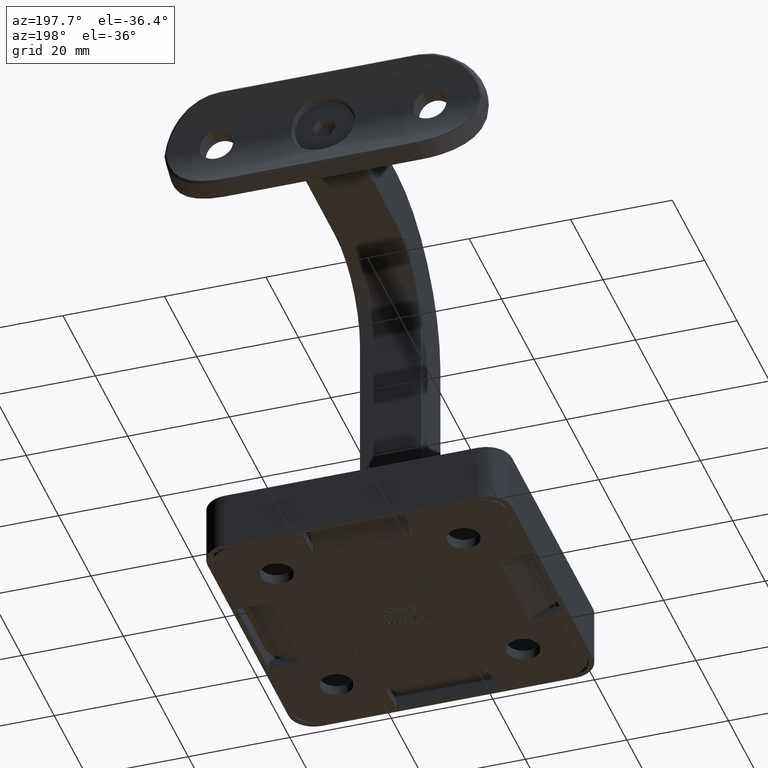
[diagram: clean part render]
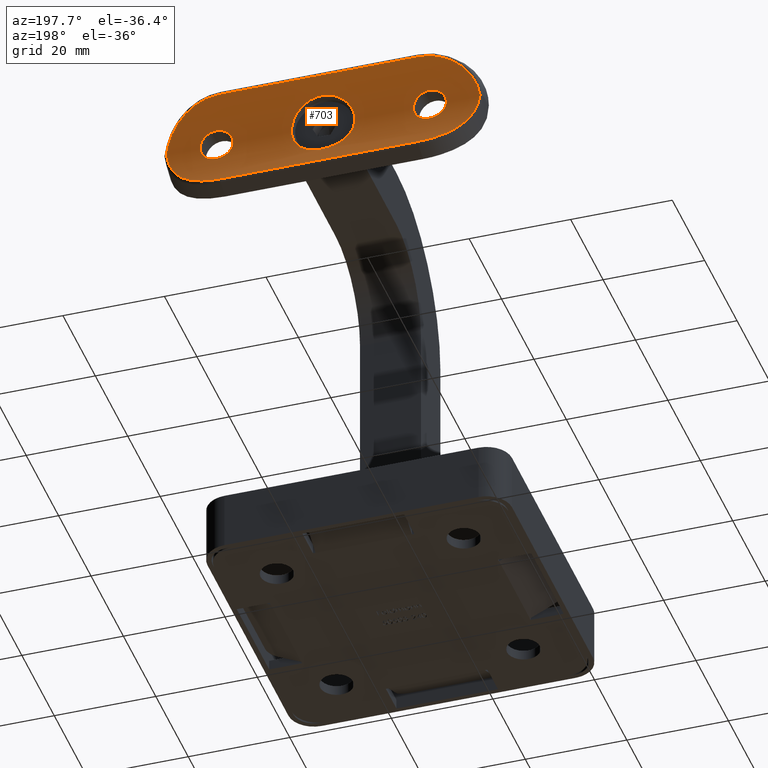
[diagram: same view with one face highlighted and labeled with its STEP entity id]
A machine part, auxiliary view. The second image highlights one B-rep face of the part: STEP entity #703.
In plain terms, the highlighted cylindrical surface (partial cylindrical patch) has radius 21.2 mm, axis along (1, -0, -0).
Its self-contained STEP definition (entity closure, byte-faithful):
#10 = CARTESIAN_POINT ( 'NONE',  ( -2.773078085023251482, 0.1787287340984154982, 5.615957133487131436 ) ) ;
#67 = CARTESIAN_POINT ( 'NONE',  ( -8.207536722232587678, 1.652397115461235355, -25.80761379992625848 ) ) ;
#86 = CARTESIAN_POINT ( 'NONE',  ( -8.028210341979747255, 1.577781140750706523, 26.09930719831840307 ) ) ;
#250 = CARTESIAN_POINT ( 'NONE',  ( 0.8461986512866588317, 0.01586733444616037977, -17.85489609357465213 ) ) ;
#393 = CARTESIAN_POINT ( 'NONE',  ( -2.146023883358511242, 0.1083588188450097106, -18.55011086799810727 ) ) ;
#458 = CARTESIAN_POINT ( 'NONE',  ( -2.918967894088989823, 0.2017509110877178380, -19.55515662026937918 ) ) ;
#534 = CARTESIAN_POINT ( 'NONE',  ( -3.082691481000268130, 0.2251614642759127705, -19.94882960865419719 ) ) ;
#639 = EDGE_LOOP ( 'NONE', ( #11848 ) ) ;
#703 = ADVANCED_FACE ( 'NONE', ( #9023, #5275, #4479, #15875 ), #8939, .F. ) ;
#929 = CARTESIAN_POINT ( 'NONE',  ( 6.048601703737721103, 0.8810077043777767569, 1.626272230955907894 ) ) ;
#1005 = CARTESIAN_POINT ( 'NONE',  ( 9.314569367520148191, 2.155469429669438330, -23.29128285309046831 ) ) ;
#1048 = CARTESIAN_POINT ( 'NONE',  ( -7.640005329831076608, 1.423398855832127774, -26.66692244407043333 ) ) ;
#1069 = CARTESIAN_POINT ( 'NONE',  ( 2.147498635732043137, 0.1084985908890658268, 18.55120459299063640 ) ) ;
#1082 = CARTESIAN_POINT ( 'NONE',  ( 2.212536913012908890, 0.1149139402876146465, -5.848852484639674998 ) ) ;
#1145 = CARTESIAN_POINT ( 'NONE',  ( 2.749051219980724436, 0.1680710607626512976, -30.30224362552802475 ) ) ;
#1211 = ORIENTED_EDGE ( 'NONE', *, *, #1903, .T. ) ;
#1216 = CARTESIAN_POINT ( 'NONE',  ( 0.4153841166999963641, 3.511610369772520730E-15, -6.249999999999999112 ) ) ;
#1218 = CARTESIAN_POINT ( 'NONE',  ( 3.394036165119943771, 0.2640775690859930580, -30.05103019445210322 ) ) ;
#1247 = CARTESIAN_POINT ( 'NONE',  ( 2.148733871589562749, 0.1086367829507912525, -23.44749672852736211 ) ) ;
#1281 = CARTESIAN_POINT ( 'NONE',  ( -1.355252715606880543E-16, 3.467847000831024617E-15, 24.25000000000000711 ) ) ;
#1413 = CARTESIAN_POINT ( 'NONE',  ( -5.850004586780881866, 0.8229527893045448517, -2.209413927911590747 ) ) ;
#1476 = CARTESIAN_POINT ( 'NONE',  ( -1.737335891831670143, 0.06858988666972785919, 30.59427768279755711 ) ) ;
#1480 = CARTESIAN_POINT ( 'NONE',  ( -2.818946742385632476, 0.1879160771953835574, 19.36874660788535252 ) ) ;
#1547 = CARTESIAN_POINT ( 'NONE',  ( -6.209910792216532194, 0.9297259159817896634, -0.8173020832162347649 ) ) ;
#1586 = CARTESIAN_POINT ( 'NONE',  ( 2.921457232206357002, 0.2020985129469361208, -19.56020391523706436 ) ) ;
#1650 = CARTESIAN_POINT ( 'NONE',  ( 0.2135048230366454469, 1.258701806793371019E-05, -17.75008210609304271 ) ) ;
#1669 = CARTESIAN_POINT ( 'NONE',  ( 9.869903768333188054, 2.437670730854278656, -19.50000000000000355 ) ) ;
#1671 = CARTESIAN_POINT ( 'NONE',  ( 3.727159214371662375E-16, 2.335886912316822497E-15, 30.90726624805199307 ) ) ;
#1677 = CARTESIAN_POINT ( 'NONE',  ( 4.607859233063393845E-16, 3.464694155971813468E-15, -6.249999999999999112 ) ) ;
#1694 = B_SPLINE_CURVE_WITH_KNOTS ( 'NONE', 3,
 ( #12386, #4320, #9274, #12181, #17128, #10527, #1005, #13760, #2577, #13699, #4252, #4176, #16986, #5984, #15332, #16927, #7443, #18491, #20064, #1218, #1145, #12246, #2704, #13825, #15404, #20130 ),
 .UNSPECIFIED., .F., .F.,
 ( 4, 2, 2, 2, 2, 2, 2, 2, 2, 2, 2, 2, 4 ),
 ( 0.000000000000000000, 0.002094732909185163978, 0.003142099363777750738, 0.004189465818370337498, 0.006284198727555501476, 0.007331565182148085634, 0.008378931636740669792, 0.01047366454592584505, 0.01152103100051843007, 0.01256839745511101683, 0.01466313036429618341, 0.01571049681888876323, 0.01675786327348134305 ),
 .UNSPECIFIED. ) ;
#1705 = EDGE_CURVE ( 'NONE', #9724, #9724, #13690, .T. ) ;
#1737 = CARTESIAN_POINT ( 'NONE',  ( 0.000000000000000000, 3.469446951953614189E-15, -24.25000000000000000 ) ) ;
#1778 = CARTESIAN_POINT ( 'NONE',  ( -1.982543221950625600, 0.09215287565810517667, -18.41591103231669280 ) ) ;
#1903 = EDGE_CURVE ( 'NONE', #15426, #11439, #9185, .T. ) ;
#2043 = CARTESIAN_POINT ( 'NONE',  ( -3.146879315023289880, 0.2348172704072529204, -21.83941132614858205 ) ) ;
#2093 = CARTESIAN_POINT ( 'NONE',  ( -3.394036165119934445, 0.2640775690859932245, -30.05103019445209611 ) ) ;
#2105 = CARTESIAN_POINT ( 'NONE',  ( -2.150385480687887263, 0.1088062235641052838, -23.44603853267266658 ) ) ;
#2308 = CARTESIAN_POINT ( 'NONE',  ( 3.727159214371662375E-16, 2.335886912316822497E-15, 30.90726624805199307 ) ) ;
#2365 = CARTESIAN_POINT ( 'NONE',  ( -4.128869264178623766, 0.4038601850098778590, 4.709693602582375682 ) ) ;
#2424 = CARTESIAN_POINT ( 'NONE',  ( 1.628785365800687668, 0.06191954441468448811, 23.82039406380677349 ) ) ;
#2474 = CARTESIAN_POINT ( 'NONE',  ( -8.028210341979752585, 1.577781140750707189, -26.09930719831840662 ) ) ;
#2519 = CARTESIAN_POINT ( 'NONE',  ( 4.900831926637868560E-15, 3.903792046978890617E-15, -30.90726624805199307 ) ) ;
#2556 = CARTESIAN_POINT ( 'NONE',  ( -0.8169384976708112811, 0.01184639767127401017, 6.210181796602538107 ) ) ;
#2564 = CARTESIAN_POINT ( 'NONE',  ( 3.250120148735856418, 0.2506153065610602360, 20.78955024339622781 ) ) ;
#2577 = CARTESIAN_POINT ( 'NONE',  ( 8.703923101943100704, 1.865795259458937538, -24.90964313488692383 ) ) ;
#2581 = CARTESIAN_POINT ( 'NONE',  ( 8.028210341979750808, 1.577781140750711630, 26.09930719831839951 ) ) ;
#2626 = CARTESIAN_POINT ( 'NONE',  ( 1.632114013627152804, 0.06218229672156012910, 18.18158538880010866 ) ) ;
#2701 = CARTESIAN_POINT ( 'NONE',  ( 3.142721505544154859, 0.2314420997654752510, 5.417654829986840781 ) ) ;
#2704 = CARTESIAN_POINT ( 'NONE',  ( 1.392930344310208346, 0.04297360798305618901, -30.67720009998936348 ) ) ;
#2783 = CARTESIAN_POINT ( 'NONE',  ( 6.209136940720304310, 0.9294881926628049129, 0.8227772426481418933 ) ) ;
#2841 = CARTESIAN_POINT ( 'NONE',  ( -4.958897457267860354, 0.5876977555683010612, 3.809647071387575412 ) ) ;
#2907 = CARTESIAN_POINT ( 'NONE',  ( -3.146879315023289880, 0.2348172704072529204, 21.83941132614859271 ) ) ;
#2984 = CARTESIAN_POINT ( 'NONE',  ( -5.423420992193905832, 0.7040967054121214375, -3.133353657714563756 ) ) ;
#2987 = EDGE_LOOP ( 'NONE', ( #18054 ) ) ;
#3052 = CARTESIAN_POINT ( 'NONE',  ( -3.082691481000268130, 0.2251614642759127705, 19.94882960865418653 ) ) ;
#3112 = CARTESIAN_POINT ( 'NONE',  ( -9.869903768333188054, 2.437670730854279988, 19.50000000000000000 ) ) ;
#3179 = CARTESIAN_POINT ( 'NONE',  ( -9.314569367520153520, 2.155469429669438330, 23.29128285309047897 ) ) ;
#3293 = CARTESIAN_POINT ( 'NONE',  ( -1.627814602934465338, 0.06183765153734858966, -18.17896950773688758 ) ) ;
#3385 = CARTESIAN_POINT ( 'NONE',  ( 0.000000000000000000, 3.469446951953614189E-15, -6.249999999999998224 ) ) ;
#3431 = CARTESIAN_POINT ( 'NONE',  ( -0.4275380518344795155, 0.003270632450825641888, -24.22886359071463502 ) ) ;
#3554 = CARTESIAN_POINT ( 'NONE',  ( -3.250179184896289097, 0.2506244651691746372, -21.21207803581958373 ) ) ;
#4029 = CARTESIAN_POINT ( 'NONE',  ( 3.229158249383773605, 0.2473313113571397048, 21.42522057988709605 ) ) ;
#4087 = B_SPLINE_CURVE_WITH_KNOTS ( 'NONE', 3,
 ( #3112, #19020, #19157, #17574, #17506, #4713, #3179, #9477, #9607, #4850, #86, #4791, #15803, #7845, #8046, #19093, #4646, #7913, #6250, #11200, #17311, #1476, #12579, #14146, #9671, #1671 ),
 .UNSPECIFIED., .F., .F.,
 ( 4, 2, 2, 2, 2, 2, 2, 2, 2, 2, 2, 2, 4 ),
 ( 0.000000000000000000, 0.002094732909185188265, 0.003142099363777777193, 0.004189465818370366121, 0.006284198727555533569, 0.007331565182148117726, 0.008378931636740702751, 0.01047366454592586413, 0.01152103100051844915, 0.01256839745511103071, 0.01466313036429619035, 0.01571049681888877017, 0.01675786327348134999 ),
 .UNSPECIFIED. ) ;
#4093 = CARTESIAN_POINT ( 'NONE',  ( -1.355252715606880543E-16, 3.467847000831024617E-15, 24.25000000000000711 ) ) ;
#4101 = CARTESIAN_POINT ( 'NONE',  ( 1.424849074835202956, 0.04698282416929931010, -6.088850896373001476 ) ) ;
#4108 = CARTESIAN_POINT ( 'NONE',  ( 3.394036165119937110, 0.2640775690859932245, 30.05103019445209256 ) ) ;
#4162 = CARTESIAN_POINT ( 'NONE',  ( 3.228949414987503097, 0.2472997075057228322, 20.57386210225567424 ) ) ;
#4173 = CARTESIAN_POINT ( 'NONE',  ( 4.707027255139115240, 0.5270787693729552803, -4.131655561407225896 ) ) ;
#4176 = CARTESIAN_POINT ( 'NONE',  ( 7.640005329831074832, 1.423398855832131771, -26.66692244407042622 ) ) ;
#4240 = CARTESIAN_POINT ( 'NONE',  ( 2.582435166560725914, 0.1575340359345713537, 22.98473451216730012 ) ) ;
#4252 = CARTESIAN_POINT ( 'NONE',  ( 8.028210341979749032, 1.577781140750710520, -26.09930719831840662 ) ) ;
#4317 = CARTESIAN_POINT ( 'NONE',  ( 4.702020635701364526, 0.5275876355808285512, 4.122503520289157564 ) ) ;
#4320 = CARTESIAN_POINT ( 'NONE',  ( 9.869903768333188054, 2.437670730854278656, -20.20777837918800302 ) ) ;
#4380 = CARTESIAN_POINT ( 'NONE',  ( 4.563671845579697184, 0.4965062165561431873, 4.275163095335101637 ) ) ;
#4382 = CARTESIAN_POINT ( 'NONE',  ( 8.979762680300604316, 1.994134989752459841, 24.28066164924026893 ) ) ;
#4433 = CARTESIAN_POINT ( 'NONE',  ( -2.445886756578100840, 0.1410260412209521086, 18.84941560476181621 ) ) ;
#4475 = CARTESIAN_POINT ( 'NONE',  ( 2.920790955711717096, 0.2020074540475383096, -22.44092318034653388 ) ) ;
#4479 = FACE_BOUND ( 'NONE', #8919, .T. ) ;
#4513 = CARTESIAN_POINT ( 'NONE',  ( -6.239524233404180720, 0.9389833121286504936, 0.4163457758189900160 ) ) ;
#4538 = EDGE_LOOP ( 'NONE', ( #1211, #17431, #19639, #11648, #15955, #10767 ) ) ;
#4580 = CARTESIAN_POINT ( 'NONE',  ( -1.443554947874321703, 0.04829879282739314716, 23.91949259422040441 ) ) ;
#4585 = CARTESIAN_POINT ( 'NONE',  ( -9.869903768333188054, 2.437670730854280432, -19.50000000000000000 ) ) ;
#4646 = CARTESIAN_POINT ( 'NONE',  ( -5.201211391313369958, 0.6457384445367473358, 29.03951747899034785 ) ) ;
#4651 = CARTESIAN_POINT ( 'NONE',  ( -1.052750469737839367, 0.02525014802993461038, 24.08204548047347160 ) ) ;
#4713 = CARTESIAN_POINT ( 'NONE',  ( -9.412720249738455891, 2.203964312871945275, 22.95375302811859086 ) ) ;
#4763 = CARTESIAN_POINT ( 'NONE',  ( 2.584791864171171127, 0.1578306486049645685, -19.01856061093072015 ) ) ;
#4791 = CARTESIAN_POINT ( 'NONE',  ( -7.640005329831074832, 1.423398855832126886, 26.66692244407043688 ) ) ;
#4796 = CARTESIAN_POINT ( 'NONE',  ( -3.812893025349347376, 0.3450818636665731742, -4.956412987034431339 ) ) ;
#4826 = EDGE_CURVE ( 'NONE', #5111, #7732, #9285, .T. ) ;
#4829 = CARTESIAN_POINT ( 'NONE',  ( 2.819839704047506057, 0.1880380726275036607, -19.37035124118170515 ) ) ;
#4850 = CARTESIAN_POINT ( 'NONE',  ( -8.207536722232587678, 1.652397115461232024, 25.80761379992626559 ) ) ;
#5039 = VECTOR ( 'NONE', #11514, 1000.000000000000000 ) ;
#5111 = VERTEX_POINT ( 'NONE', #4585 ) ;
#5275 = FACE_BOUND ( 'NONE', #2987, .T. ) ;
#5356 = CARTESIAN_POINT ( 'NONE',  ( -0.4066726438284255507, -5.109145832985006135E-05, 6.250173302240961348 ) ) ;
#5435 = CARTESIAN_POINT ( 'NONE',  ( -4.616649565942609001, 0.5065997281064381630, -29.41309669225901047 ) ) ;
#5569 = DIRECTION ( 'NONE',  ( -0.000000000000000000, -0.000000000000000000, -1.000000000000000000 ) ) ;
#5636 = CARTESIAN_POINT ( 'NONE',  ( 2.921457232206357002, 0.2020985129469361208, 19.56020391523706792 ) ) ;
#5708 = CARTESIAN_POINT ( 'NONE',  ( 3.249878801187870092, 0.2505778649504938338, 21.21414448128090058 ) ) ;
#5720 = VERTEX_POINT ( 'NONE', #3385 ) ;
#5721 = CARTESIAN_POINT ( 'NONE',  ( 5.411934874550039076, 0.7021725669869981479, 3.132905830933763180 ) ) ;
#5778 = CARTESIAN_POINT ( 'NONE',  ( 2.584791864171171127, 0.1578306486049645685, 19.01856061093072015 ) ) ;
#5789 = CARTESIAN_POINT ( 'NONE',  ( 3.645808770947279509, 0.3151353198254585597, -5.080564660467373983 ) ) ;
#5853 = CARTESIAN_POINT ( 'NONE',  ( 3.811200534816027830, 0.3447709507075455426, -4.957723033748285602 ) ) ;
#5860 = CARTESIAN_POINT ( 'NONE',  ( 0.3518718617179892316, 2.387044724481025143E-15, 30.86704363135204687 ) ) ;
#5915 = CARTESIAN_POINT ( 'NONE',  ( 2.017426682319548359, 0.09528350916322320119, -5.919025713268560196 ) ) ;
#5942 = CARTESIAN_POINT ( 'NONE',  ( 1.442239263721962095, 0.04819686276430737437, -23.92024035302755891 ) ) ;
#5969 = CARTESIAN_POINT ( 'NONE',  ( -0.2109978030792319381, -1.251290074125386183E-05, 17.74991837737998779 ) ) ;
#5971 = CARTESIAN_POINT ( 'NONE',  ( -5.919265578215370027, 0.8430304687443062051, -2.016754077386379240 ) ) ;
#5980 = CARTESIAN_POINT ( 'NONE',  ( 4.607859233063393845E-16, 3.464694155971813468E-15, -6.249999999999999112 ) ) ;
#5984 = CARTESIAN_POINT ( 'NONE',  ( 6.771736089016549442, 1.105174549759637026, -27.72763968669972456 ) ) ;
#5987 = CARTESIAN_POINT ( 'NONE',  ( 8.703923101943106033, 1.865795259458940647, 24.90964313488691673 ) ) ;
#6039 = CARTESIAN_POINT ( 'NONE',  ( -0.4221747768704051107, 0.003162049178561666864, 17.77042794181228658 ) ) ;
#6075 = CARTESIAN_POINT ( 'NONE',  ( 3.082978690918154907, 0.2252067195362546237, -22.05001038564952864 ) ) ;
#6107 = CARTESIAN_POINT ( 'NONE',  ( -6.249934268010306937, 0.9422034354612714990, 0.2079996149894346169 ) ) ;
#6179 = CARTESIAN_POINT ( 'NONE',  ( -4.966423312642180399, 0.5885908633273685409, -3.816548163265730320 ) ) ;
#6222 = CARTESIAN_POINT ( 'NONE',  ( 1.048813183214363676, 0.02504259846290238928, -24.08347996912378974 ) ) ;
#6246 = CARTESIAN_POINT ( 'NONE',  ( 4.900831926637868560E-15, 3.903792046978890617E-15, -30.90726624805199307 ) ) ;
#6250 = CARTESIAN_POINT ( 'NONE',  ( -4.316626468119180160, 0.4417530047554237838, 29.58390907136765335 ) ) ;
#6259 = CARTESIAN_POINT ( 'NONE',  ( -3.145373074388930767, 0.2345905360707694343, 20.15500212356449694 ) ) ;
#6261 = CARTESIAN_POINT ( 'NONE',  ( -6.771736089016548554, 1.105174549759636804, -27.72763968669973167 ) ) ;
#6420 = CARTESIAN_POINT ( 'NONE',  ( -0.7008956395690468799, 0.008757327635675944688, -30.81336595348422946 ) ) ;
#6465 = CARTESIAN_POINT ( 'NONE',  ( -5.482231532182828992, 0.7192156178333417582, -28.83887209017430919 ) ) ;
#6485 = CARTESIAN_POINT ( 'NONE',  ( -8.979762680300602540, 1.994134989752459175, -24.28066164924026893 ) ) ;
#6599 = CARTESIAN_POINT ( 'NONE',  ( -2.781056929607645944, 0.1797819903685708431, -5.612029590905950549 ) ) ;
#6634 = CARTESIAN_POINT ( 'NONE',  ( -0.8474655071052326072, 0.01590391635378472085, -24.14486106012267896 ) ) ;
#6751 = B_SPLINE_CURVE_WITH_KNOTS ( 'NONE', 3,
 ( #2519, #16662, #6420, #18859, #12681, #19188, #2093, #6953, #5435, #18417, #6465, #17579, #6261, #18604, #1048, #2474, #67, #17622, #6485, #9692, #17463, #17533, #19184, #11294, #16081, #17662 ),
 .UNSPECIFIED., .F., .F.,
 ( 4, 2, 2, 2, 2, 2, 2, 2, 2, 2, 2, 2, 4 ),
 ( 0.000000000000000000, 0.001059096318398935728, 0.002118192636797871457, 0.004236385273595745515, 0.005295481591994682762, 0.006354577910393620008, 0.008472770547191501439, 0.009531866865590446491, 0.01059096318398939154, 0.01270915582078728512, 0.01376825213918622670, 0.01482734845758516828, 0.01694554109438306186 ),
 .UNSPECIFIED. ) ;
#6769 = CARTESIAN_POINT ( 'NONE',  ( -2.449360428614453689, 0.1414329518492851712, -23.14660096655394739 ) ) ;
#6896 = CARTESIAN_POINT ( 'NONE',  ( -0.2150499108967897088, 3.440647831746974683E-15, -24.25000000000000711 ) ) ;
#6953 = CARTESIAN_POINT ( 'NONE',  ( -4.316626468119181048, 0.4417530047554265038, -29.58390907136764980 ) ) ;
#7302 = CARTESIAN_POINT ( 'NONE',  ( 5.848568015681261834, 0.8225408496147016413, -2.213164431938657195 ) ) ;
#7310 = CARTESIAN_POINT ( 'NONE',  ( 5.201211391313371735, 0.6457384445367504444, 29.03951747899034075 ) ) ;
#7358 = CARTESIAN_POINT ( 'NONE',  ( 2.450216287825430772, 0.1415189953341011442, 18.85412267854472645 ) ) ;
#7366 = CARTESIAN_POINT ( 'NONE',  ( 5.307255044746158390, 0.6747329201279589350, 3.307069988759584245 ) ) ;
#7367 = EDGE_CURVE ( 'NONE', #20435, #8297, #1694, .T. ) ;
#7374 = CARTESIAN_POINT ( 'NONE',  ( 9.579260868800364648, 2.287400085288406881, 22.27686127888723533 ) ) ;
#7424 = B_SPLINE_CURVE_WITH_KNOTS ( 'NONE', 3,
 ( #4093, #13543, #18556, #18337, #16835, #20116, #2424, #16703, #12101, #15190, #4240, #12039, #8813, #10513, #19988, #4029, #5708, #2564, #4162, #9045, #15252, #5636, #16766, #5778, #7358, #1069, #12169, #2626, #13749, #15320, #7567, #15459, #18902, #5969, #6039, #18755, #12520, #9262, #14153, #9483, #13945, #4433, #17117, #1480, #18623, #3052, #6259, #20329, #12372, #15599, #18833, #2907, #10788, #20455, #12585, #17042, #9181, #17316, #20180, #17182, #4580, #4651, #15743, #7854, #7710, #1281 ),
 .UNSPECIFIED., .T., .F.,
 ( 4, 2, 2, 2, 2, 2, 2, 2, 2, 2, 2, 2, 2, 2, 2, 2, 2, 2, 2, 2, 2, 2, 2, 2, 2, 2, 2, 2, 2, 2, 2, 2, 4 ),
 ( 0.000000000000000000, 0.0006359210278306046951, 0.001271842055661209390, 0.001907763083491813760, 0.002543684111322419214, 0.003179605139153024451, 0.003815526166983629255, 0.004451447194814234926, 0.005087368222644839295, 0.005723289250475444533, 0.006359210278306048902, 0.006995131306136654140, 0.007631052333967257642, 0.008266973361797862879, 0.008902894389628466382, 0.009538815417459071619, 0.01017473644528967686, 0.01081065747312028209, 0.01144657850095088733, 0.01208249952878149083, 0.01271842055661209607, 0.01335434158444270131, 0.01399026261227330481, 0.01462618364010391005, 0.01526210466793451355, 0.01589802569576511879, 0.01653394672359572229, 0.01716986775142632579, 0.01780578877925693276, 0.01844170980708753627, 0.01907763083491814324, 0.01971355186274874674, 0.02034947289057935371 ),
 .UNSPECIFIED. ) ;
#7441 = CARTESIAN_POINT ( 'NONE',  ( 6.250272170820363016, 0.9423076863965756944, 0.4060068921556626576 ) ) ;
#7443 = CARTESIAN_POINT ( 'NONE',  ( 5.201211391313374399, 0.6457384445367500003, -29.03951747899034785 ) ) ;
#7447 = CARTESIAN_POINT ( 'NONE',  ( 5.482231532182832545, 0.7192156178333423133, 28.83887209017430919 ) ) ;
#7567 = CARTESIAN_POINT ( 'NONE',  ( 0.8461986512866588317, 0.01586733444616037977, 17.85489609357465923 ) ) ;
#7676 = CARTESIAN_POINT ( 'NONE',  ( 2.582435166560725914, 0.1575340359345713537, -22.98473451216730368 ) ) ;
#7710 = CARTESIAN_POINT ( 'NONE',  ( -0.2150499108967897088, 3.440647831746974683E-15, 24.25000000000001776 ) ) ;
#7712 = CARTESIAN_POINT ( 'NONE',  ( -5.418342615258405104, 0.7027876682133700204, 3.141403287028120772 ) ) ;
#7732 = VERTEX_POINT ( 'NONE', #18186 ) ;
#7756 = CARTESIAN_POINT ( 'NONE',  ( -1.355252715606880543E-16, 3.467847000831024617E-15, -24.25000000000000000 ) ) ;
#7785 = CARTESIAN_POINT ( 'NONE',  ( -4.708117847964828684, 0.5273280253430154829, -4.130414004293346153 ) ) ;
#7821 = CARTESIAN_POINT ( 'NONE',  ( 1.628785365800687668, 0.06191954441468448811, -23.82039406380676283 ) ) ;
#7845 = CARTESIAN_POINT ( 'NONE',  ( -6.771736089016547666, 1.105174549759638580, 27.72763968669972456 ) ) ;
#7854 = CARTESIAN_POINT ( 'NONE',  ( -0.4275380518344795155, 0.003270632450825641888, 24.22886359071463147 ) ) ;
#7911 = CARTESIAN_POINT ( 'NONE',  ( -1.628583440951772321, 0.05873803291983947794, 6.048261108094442839 ) ) ;
#7913 = CARTESIAN_POINT ( 'NONE',  ( -4.616649565942609890, 0.5065997281064386071, 29.41309669225901047 ) ) ;
#7916 = CARTESIAN_POINT ( 'NONE',  ( -1.628331638382387370, 0.05878972328453856144, -6.048074268472876547 ) ) ;
#7995 = CARTESIAN_POINT ( 'NONE',  ( 0.2073184500589466683, 2.579505848641800242E-05, 6.249912503154439136 ) ) ;
#8025 = CARTESIAN_POINT ( 'NONE',  ( -0.8423241288772259638, 0.01569777600591362038, -17.85375505035547050 ) ) ;
#8046 = CARTESIAN_POINT ( 'NONE',  ( -6.285527558648515090, 0.9455755639782207345, 28.20157468809998846 ) ) ;
#8179 = CARTESIAN_POINT ( 'NONE',  ( -2.019498987587626804, 0.09300041362135283429, 5.928790806727269214 ) ) ;
#8189 = CARTESIAN_POINT ( 'NONE',  ( -3.138816783762639062, 0.2308336252617739504, -5.420037689340374776 ) ) ;
#8297 = VERTEX_POINT ( 'NONE', #6246 ) ;
#8430 = CARTESIAN_POINT ( 'NONE',  ( -2.818946742385632476, 0.1879160771953835574, -19.36874660788534186 ) ) ;
#8559 = EDGE_CURVE ( 'NONE', #5720, #5720, #14841, .T. ) ;
#8813 = CARTESIAN_POINT ( 'NONE',  ( 2.920790955711717096, 0.2020074540475383096, 22.44092318034653033 ) ) ;
#8820 = CARTESIAN_POINT ( 'NONE',  ( 6.037489438090899441, 0.8777801580022908112, -1.628895278877129815 ) ) ;
#8901 = CARTESIAN_POINT ( 'NONE',  ( 5.917687611305371576, 0.8425720839653345617, -2.021274815459369822 ) ) ;
#8919 = EDGE_LOOP ( 'NONE', ( #15943 ) ) ;
#8939 = CYLINDRICAL_SURFACE ( 'NONE', #17065, 21.19999999999999574 ) ;
#8980 = CARTESIAN_POINT ( 'NONE',  ( 1.623571473302695578, 0.06133674405568360216, -6.038947878889743492 ) ) ;
#8989 = CARTESIAN_POINT ( 'NONE',  ( 9.814006423039788984, 2.407961201125284667, 20.90506211287123506 ) ) ;
#9023 = FACE_OUTER_BOUND ( 'NONE', #4538, .T. ) ;
#9045 = CARTESIAN_POINT ( 'NONE',  ( 3.145907283640575258, 0.2346707339384939139, 20.15680654937359506 ) ) ;
#9054 = CARTESIAN_POINT ( 'NONE',  ( 5.081585807027370727, 0.6177010395854839464, 3.644331722875380208 ) ) ;
#9059 = CARTESIAN_POINT ( 'NONE',  ( 9.869903768333189831, 2.437670730854281764, 20.20777837918799946 ) ) ;
#9119 = CARTESIAN_POINT ( 'NONE',  ( 4.126940293863237130, 0.4049478955708833983, -4.698151871409468328 ) ) ;
#9126 = CARTESIAN_POINT ( 'NONE',  ( 4.616649565942611666, 0.5065997281064418267, 29.41309669225901402 ) ) ;
#9181 = CARTESIAN_POINT ( 'NONE',  ( -2.449360428614453689, 0.1414329518492851712, 23.14660096655394383 ) ) ;
#9185 = B_SPLINE_CURVE_WITH_KNOTS ( 'NONE', 3,
 ( #2308, #5860, #10736, #10530, #16777, #13764, #4108, #12316, #9126, #7310, #7447, #16931, #17056, #18494, #10801, #2581, #13888, #5987, #4382, #13704, #20134, #7374, #18357, #8989, #9059, #10662 ),
 .UNSPECIFIED., .F., .F.,
 ( 4, 2, 2, 2, 2, 2, 2, 2, 2, 2, 2, 2, 4 ),
 ( 0.000000000000000000, 0.001059096318398935511, 0.002118192636797871023, 0.004236385273595744648, 0.005295481591994684496, 0.006354577910393622610, 0.008472770547191510113, 0.009531866865590449961, 0.01059096318398938981, 0.01270915582078726951, 0.01376825213918621456, 0.01482734845758515961, 0.01694554109438306186 ),
 .UNSPECIFIED. ) ;
#9262 = CARTESIAN_POINT ( 'NONE',  ( -1.438401774077976869, 0.04794561704964943327, 18.07795835764009951 ) ) ;
#9274 = CARTESIAN_POINT ( 'NONE',  ( 9.814006423039783655, 2.407961201125285999, -20.90506211287123151 ) ) ;
#9285 = LINE ( 'NONE', #10116, #5039 ) ;
#9335 = CARTESIAN_POINT ( 'NONE',  ( -6.089742371759958139, 0.8934299125204739900, -1.421146203323436330 ) ) ;
#9410 = CARTESIAN_POINT ( 'NONE',  ( -4.278556194359627973, 0.4357183617580916990, -4.560428189436136925 ) ) ;
#9477 = CARTESIAN_POINT ( 'NONE',  ( -8.979762680300597211, 1.994134989752460285, 24.28066164924026893 ) ) ;
#9483 = CARTESIAN_POINT ( 'NONE',  ( -1.982543221950625600, 0.09215287565810517667, 18.41591103231669280 ) ) ;
#9523 = CARTESIAN_POINT ( 'NONE',  ( 3.084468863350041445, 0.2254241747152322395, -19.95406646657945160 ) ) ;
#9584 = CARTESIAN_POINT ( 'NONE',  ( 1.632114013627152804, 0.06218229672156012910, -18.18158538880010155 ) ) ;
#9607 = CARTESIAN_POINT ( 'NONE',  ( -8.703923101943100704, 1.865795259458935096, 24.90964313488692028 ) ) ;
#9611 = CARTESIAN_POINT ( 'NONE',  ( -0.8241099700933524064, 0.01219504889547936080, -6.208986152240436596 ) ) ;
#9671 = CARTESIAN_POINT ( 'NONE',  ( -0.3518718617179878994, 1.904788868831087743E-15, 30.86704363135204687 ) ) ;
#9692 = CARTESIAN_POINT ( 'NONE',  ( -9.314569367520157073, 2.155469429669437886, -23.29128285309047897 ) ) ;
#9719 = VECTOR ( 'NONE', #5569, 1000.000000000000000 ) ;
#9724 = VERTEX_POINT ( 'NONE', #1737 ) ;
#9748 = CARTESIAN_POINT ( 'NONE',  ( -2.027418235541531111, 0.09375878759209647917, -5.926105725779481581 ) ) ;
#9783 = CARTESIAN_POINT ( 'NONE',  ( 1.983721702801608089, 0.09227673062906002754, -18.41695813430423811 ) ) ;
#9839 = CARTESIAN_POINT ( 'NONE',  ( -2.821907254063744208, 0.1883137111381977535, -22.62618509924796939 ) ) ;
#9983 = CARTESIAN_POINT ( 'NONE',  ( -1.355252715606880543E-16, 3.467847000831024617E-15, -24.25000000000000000 ) ) ;
#10049 = CARTESIAN_POINT ( 'NONE',  ( -3.249818524630297301, 0.2505685139125747862, -20.78246521156388127 ) ) ;
#10116 = CARTESIAN_POINT ( 'NONE',  ( -9.869903768333188054, 2.437670730854279100, 31.50000000000000000 ) ) ;
#10215 = LINE ( 'NONE', #13408, #9719 ) ;
#10513 = CARTESIAN_POINT ( 'NONE',  ( 3.082978690918154907, 0.2252067195362546237, 22.05001038564953220 ) ) ;
#10525 = CARTESIAN_POINT ( 'NONE',  ( 4.960596433785669390, 0.5881074608791682090, 3.807429100386624299 ) ) ;
#10527 = CARTESIAN_POINT ( 'NONE',  ( 9.412720249738455891, 2.203964312871945719, -22.95375302811859441 ) ) ;
#10530 = CARTESIAN_POINT ( 'NONE',  ( 1.392930344310205015, 0.04297360798305521756, 30.67720009998934927 ) ) ;
#10658 = CARTESIAN_POINT ( 'NONE',  ( 1.028432529712561383, 0.02399588449467194434, 6.168237391625247312 ) ) ;
#10662 = CARTESIAN_POINT ( 'NONE',  ( 9.869903768333193383, 2.437670730854281320, 19.50000000000000000 ) ) ;
#10729 = CARTESIAN_POINT ( 'NONE',  ( 0.8222993865498444688, 0.01496025105131938877, 6.199095712120989532 ) ) ;
#10736 = CARTESIAN_POINT ( 'NONE',  ( 0.7008956395690518759, 0.008757327635673108415, 30.81336595348422946 ) ) ;
#10767 = ORIENTED_EDGE ( 'NONE', *, *, #13189, .T. ) ;
#10788 = CARTESIAN_POINT ( 'NONE',  ( -3.084331617472055864, 0.2254044745776143666, 22.04627208264582094 ) ) ;
#10801 = CARTESIAN_POINT ( 'NONE',  ( 7.640005329831078384, 1.423398855832132881, 26.66692244407042978 ) ) ;
#10808 = EDGE_CURVE ( 'NONE', #8297, #5111, #6751, .T. ) ;
#10852 = CARTESIAN_POINT ( 'NONE',  ( -6.198521291053710414, 0.9264015604088389200, 0.8266439793733098007 ) ) ;
#10894 = CARTESIAN_POINT ( 'NONE',  ( 0.4264434180833561183, 0.003268988495231741048, -24.22886645516788207 ) ) ;
#10927 = CARTESIAN_POINT ( 'NONE',  ( -6.039301808927668880, 0.8783182993483288348, -1.622293331917177506 ) ) ;
#10976 = CARTESIAN_POINT ( 'NONE',  ( 0.8422358293998262191, 0.01571576921727201037, -24.14612005203396450 ) ) ;
#11046 = CARTESIAN_POINT ( 'NONE',  ( 3.250120148735856418, 0.2506153065610602360, -20.78955024339622426 ) ) ;
#11074 = CARTESIAN_POINT ( 'NONE',  ( -6.168043762102296768, 0.9170762160689427400, 1.029291115725361250 ) ) ;
#11133 = CARTESIAN_POINT ( 'NONE',  ( -0.4153841166999954759, 3.417777942171106601E-15, -6.249999999999999112 ) ) ;
#11200 = CARTESIAN_POINT ( 'NONE',  ( -3.394036165119934445, 0.2640775690859905600, 30.05103019445209611 ) ) ;
#11247 = CARTESIAN_POINT ( 'NONE',  ( 0.4291155959866708169, 0.003316562383972961828, -17.77144141373703690 ) ) ;
#11294 = CARTESIAN_POINT ( 'NONE',  ( -9.814006423039788984, 2.407961201125285999, -20.90506211287123506 ) ) ;
#11379 = CARTESIAN_POINT ( 'NONE',  ( 2.450216287825430772, 0.1415189953341011442, -18.85412267854471935 ) ) ;
#11401 = CARTESIAN_POINT ( 'NONE',  ( 0.000000000000000000, 3.469446951953614189E-15, 24.25000000000000355 ) ) ;
#11439 = VERTEX_POINT ( 'NONE', #20293 ) ;
#11443 = CARTESIAN_POINT ( 'NONE',  ( -1.987048177762576806, 0.09257353735407763962, -23.58067904902007328 ) ) ;
#11514 = DIRECTION ( 'NONE',  ( 0.000000000000000000, 0.000000000000000000, 1.000000000000000000 ) ) ;
#11640 = CARTESIAN_POINT ( 'NONE',  ( -3.084331617472055864, 0.2254044745776143666, -22.04627208264581029 ) ) ;
#11648 = ORIENTED_EDGE ( 'NONE', *, *, #10808, .T. ) ;
#11711 = CARTESIAN_POINT ( 'NONE',  ( -3.228460125727636854, 0.2472242654131645290, -20.57053707394224062 ) ) ;
#11848 = ORIENTED_EDGE ( 'NONE', *, *, #1705, .T. ) ;
#12039 = CARTESIAN_POINT ( 'NONE',  ( 2.820025938915970531, 0.1880558028967098116, 22.62960000525240289 ) ) ;
#12047 = CARTESIAN_POINT ( 'NONE',  ( 5.604762028757867220, 0.7540563641355658708, 2.773225672905783590 ) ) ;
#12101 = CARTESIAN_POINT ( 'NONE',  ( 2.148733871589562749, 0.1086367829507912525, 23.44749672852736211 ) ) ;
#12169 = CARTESIAN_POINT ( 'NONE',  ( 1.983721702801608089, 0.09227673062906002754, 18.41695813430424167 ) ) ;
#12181 = CARTESIAN_POINT ( 'NONE',  ( 9.648266983172632649, 2.322637755928653291, -21.93581992887936494 ) ) ;
#12244 = CARTESIAN_POINT ( 'NONE',  ( 2.779446063824876134, 0.1795486602694989775, -5.612910073426255586 ) ) ;
#12246 = CARTESIAN_POINT ( 'NONE',  ( 1.737335891831677026, 0.06858988666972884451, -30.59427768279755000 ) ) ;
#12309 = CARTESIAN_POINT ( 'NONE',  ( 0.8233808030139146972, 0.01218826397077178540, -6.209005117610397306 ) ) ;
#12316 = CARTESIAN_POINT ( 'NONE',  ( 4.316626468119182825, 0.4417530047554268369, 29.58390907136765691 ) ) ;
#12341 = CARTESIAN_POINT ( 'NONE',  ( 3.228949414987503097, 0.2472997075057228322, -20.57386210225567424 ) ) ;
#12372 = CARTESIAN_POINT ( 'NONE',  ( -3.249818524630297301, 0.2505685139125747862, 20.78246521156388482 ) ) ;
#12386 = CARTESIAN_POINT ( 'NONE',  ( 9.869903768333188054, 2.437670730854278656, -19.50000000000000355 ) ) ;
#12520 = CARTESIAN_POINT ( 'NONE',  ( -1.047135578693872082, 0.02496962545759998792, 17.91603597569792328 ) ) ;
#12521 = CARTESIAN_POINT ( 'NONE',  ( -5.615371060258131486, 0.7565649993771621507, -2.774231810149227151 ) ) ;
#12579 = CARTESIAN_POINT ( 'NONE',  ( -1.392930344310202351, 0.04297360798305503715, 30.67720009998935993 ) ) ;
#12585 = CARTESIAN_POINT ( 'NONE',  ( -2.821907254063744208, 0.1883137111381977535, 22.62618509924797650 ) ) ;
#12587 = CARTESIAN_POINT ( 'NONE',  ( -5.611457660758762955, 0.7554722972468549402, 2.782874700547278035 ) ) ;
#12681 = CARTESIAN_POINT ( 'NONE',  ( -1.737335891831669699, 0.06858988666972762327, -30.59427768279754645 ) ) ;
#12695 = CARTESIAN_POINT ( 'NONE',  ( 1.048768862925167689, 0.02504141971367204039, -17.91651341461583158 ) ) ;
#12824 = CARTESIAN_POINT ( 'NONE',  ( -1.438401774077976869, 0.04794561704964943327, -18.07795835764009595 ) ) ;
#13189 = EDGE_CURVE ( 'NONE', #7732, #15426, #4087, .T. ) ;
#13223 = CARTESIAN_POINT ( 'NONE',  ( -1.443554947874321703, 0.04829879282739314716, -23.91949259422040086 ) ) ;
#13408 = CARTESIAN_POINT ( 'NONE',  ( 9.869903768333189831, 2.437670730854279100, 31.50000000000000000 ) ) ;
#13453 = DIRECTION ( 'NONE',  ( -0.000000000000000000, -0.000000000000000000, -1.000000000000000000 ) ) ;
#13515 = DIRECTION ( 'NONE',  ( -1.000000000000000000, 0.000000000000000000, 0.000000000000000000 ) ) ;
#13543 = CARTESIAN_POINT ( 'NONE',  ( 0.2150499108967886819, 3.495046169915074946E-15, 24.25000000000000000 ) ) ;
#13690 = B_SPLINE_CURVE_WITH_KNOTS ( 'NONE', 3,
 ( #7756, #18800, #10894, #10976, #6222, #5942, #7821, #13982, #1247, #17289, #7676, #18876, #4475, #6075, #20222, #20430, #17155, #11046, #12341, #19201, #9523, #1586, #4829, #4763, #11379, #18998, #9783, #9584, #19133, #12695, #250, #11247, #1650, #14324, #17478, #8025, #19062, #12824, #3293, #1778, #393, #16170, #17896, #8430, #458, #534, #19388, #11711, #10049, #3554, #19262, #2043, #11640, #16308, #9839, #14798, #6769, #2105, #11443, #17677, #13223, #17750, #6634, #3431, #6896, #9983 ),
 .UNSPECIFIED., .T., .F.,
 ( 4, 2, 2, 2, 2, 2, 2, 2, 2, 2, 2, 2, 2, 2, 2, 2, 2, 2, 2, 2, 2, 2, 2, 2, 2, 2, 2, 2, 2, 2, 2, 2, 4 ),
 ( 0.000000000000000000, 0.0006359210278306046951, 0.001271842055661209390, 0.001907763083491813760, 0.002543684111322419214, 0.003179605139153024451, 0.003815526166983629255, 0.004451447194814234926, 0.005087368222644839295, 0.005723289250475444533, 0.006359210278306048902, 0.006995131306136654140, 0.007631052333967257642, 0.008266973361797862879, 0.008902894389628466382, 0.009538815417459071619, 0.01017473644528967686, 0.01081065747312028209, 0.01144657850095088733, 0.01208249952878149083, 0.01271842055661209607, 0.01335434158444270131, 0.01399026261227330481, 0.01462618364010391005, 0.01526210466793451355, 0.01589802569576511879, 0.01653394672359572229, 0.01716986775142632579, 0.01780578877925693276, 0.01844170980708753627, 0.01907763083491814324, 0.01971355186274874674, 0.02034947289057935371 ),
 .UNSPECIFIED. ) ;
#13696 = CARTESIAN_POINT ( 'NONE',  ( 5.693306450056798695, 0.7786147160836313086, 2.586704202400922803 ) ) ;
#13699 = CARTESIAN_POINT ( 'NONE',  ( 8.207536722232582349, 1.652397115461234023, -25.80761379992625493 ) ) ;
#13704 = CARTESIAN_POINT ( 'NONE',  ( 9.314569367520151744, 2.155469429669437442, 23.29128285309046120 ) ) ;
#13749 = CARTESIAN_POINT ( 'NONE',  ( 1.441976982013434050, 0.04817999821229667495, 18.07963905767987356 ) ) ;
#13756 = CARTESIAN_POINT ( 'NONE',  ( 0.4121785730507796508, 0.003014500416016643262, 6.239797492953988112 ) ) ;
#13760 = CARTESIAN_POINT ( 'NONE',  ( 8.979762680300598987, 1.994134989752460285, -24.28066164924026182 ) ) ;
#13764 = CARTESIAN_POINT ( 'NONE',  ( 2.749051219980723992, 0.1680710607626507980, 30.30224362552802475 ) ) ;
#13824 = CARTESIAN_POINT ( 'NONE',  ( 5.421713914954435332, 0.7036460286707156842, -3.136250887450267921 ) ) ;
#13825 = CARTESIAN_POINT ( 'NONE',  ( 0.7008956395690539853, 0.008757327635673928939, -30.81336595348423657 ) ) ;
#13888 = CARTESIAN_POINT ( 'NONE',  ( 8.207536722232589455, 1.652397115461235799, 25.80761379992625493 ) ) ;
#13945 = CARTESIAN_POINT ( 'NONE',  ( -2.146023883358511242, 0.1083588188450097106, 18.55011086799810727 ) ) ;
#13982 = CARTESIAN_POINT ( 'NONE',  ( 1.981826496045466346, 0.09209269363216752990, -23.58455570312869298 ) ) ;
#14146 = CARTESIAN_POINT ( 'NONE',  ( -0.7008956395690491004, 0.008757327635673150049, 30.81336595348423302 ) ) ;
#14153 = CARTESIAN_POINT ( 'NONE',  ( -1.627814602934465338, 0.06183765153734858966, 18.17896950773689113 ) ) ;
#14324 = CARTESIAN_POINT ( 'NONE',  ( -0.2109978030792319381, -1.251290074125386183E-05, -17.74991837737998779 ) ) ;
#14798 = CARTESIAN_POINT ( 'NONE',  ( -2.586182703388967496, 0.1579996132313417900, -22.97972158452784797 ) ) ;
#14841 = B_SPLINE_CURVE_WITH_KNOTS ( 'NONE', 3,
 ( #5980, #1216, #12309, #4101, #8980, #5915, #1082, #12244, #18272, #5789, #5853, #9119, #18345, #4173, #15259, #13824, #16848, #7302, #8901, #8820, #19925, #16923, #15199, #7441, #2783, #929, #16984, #13696, #12047, #5721, #7366, #9054, #10525, #4317, #4380, #18427, #19996, #2701, #18565, #20061, #20126, #10658, #10729, #13756, #7995, #5356, #2556, #7911, #8179, #10, #17502, #16121, #2365, #20456, #15460, #2841, #18835, #7712, #12587, #15530, #20254, #11074, #10852, #4513, #6107, #18757, #1547, #9335, #10927, #5971, #1413, #12521, #2984, #6179, #7785, #9410, #20396, #4796, #16065, #8189, #6599, #9748, #7916, #9611, #11133, #1677 ),
 .UNSPECIFIED., .T., .F.,
 ( 4, 2, 2, 2, 2, 2, 2, 2, 2, 2, 2, 2, 2, 2, 2, 2, 2, 2, 2, 2, 2, 2, 2, 2, 2, 2, 2, 2, 2, 2, 2, 2, 2, 2, 2, 2, 2, 2, 2, 2, 2, 2, 4 ),
 ( 0.000000000000000000, 0.001227966697524695162, 0.001841950046287042526, 0.002455933395049390323, 0.003683900092574085051, 0.004297883441336432415, 0.004911866790098779779, 0.006139833487623470171, 0.007367800185148160562, 0.007981783533910507059, 0.008595766882672850953, 0.009823733580197543946, 0.01105170027772223347, 0.01227966697524692646, 0.01289365032400927036, 0.01350763367277161599, 0.01412161702153396162, 0.01473560037029630551, 0.01596356706782099677, 0.01719153376534568803, 0.01841950046287037929, 0.01903348381163272318, 0.01964746716039507055, 0.02087543385791976180, 0.02210340055544444959, 0.02333136725296914085, 0.02455933395049383211, 0.02517331729925617947, 0.02578730064801852684, 0.02701526734554321810, 0.02824323404306790936, 0.02885721739183025672, 0.02947120074059260061, 0.03069916743811729534, 0.03131315078687964271, 0.03192713413564199354, 0.03315510083316668133, 0.03438306753069136912, 0.03499705087945371995, 0.03561103422821606385, 0.03683900092574076551, 0.03806696762326545330, 0.03929493432079014803 ),
 .UNSPECIFIED. ) ;
#15190 = CARTESIAN_POINT ( 'NONE',  ( 2.448021508383576794, 0.1412761474275461837, 23.14813597836818104 ) ) ;
#15199 = CARTESIAN_POINT ( 'NONE',  ( 6.249725049153889600, 0.9421388865473470098, -0.4143435962915480997 ) ) ;
#15252 = CARTESIAN_POINT ( 'NONE',  ( 3.084468863350041445, 0.2254241747152322395, 19.95406646657944449 ) ) ;
#15259 = CARTESIAN_POINT ( 'NONE',  ( 4.964868463456276082, 0.5882172281431801153, -3.818524917454447554 ) ) ;
#15320 = CARTESIAN_POINT ( 'NONE',  ( 1.048768862925167689, 0.02504141971367204039, 17.91651341461583158 ) ) ;
#15332 = CARTESIAN_POINT ( 'NONE',  ( 6.285527558648518642, 0.9455755639782227329, -28.20157468809998846 ) ) ;
#15404 = CARTESIAN_POINT ( 'NONE',  ( 0.3518718617179937835, 2.952662739356573925E-15, -30.86704363135205043 ) ) ;
#15426 = VERTEX_POINT ( 'NONE', #16477 ) ;
#15459 = CARTESIAN_POINT ( 'NONE',  ( 0.4291155959866708169, 0.003316562383972961828, 17.77144141373703334 ) ) ;
#15460 = CARTESIAN_POINT ( 'NONE',  ( -4.700046672115656854, 0.5271378593230039433, 4.124758911762493874 ) ) ;
#15530 = CARTESIAN_POINT ( 'NONE',  ( -5.928679088154840571, 0.8451987399335069151, 2.020795127446077366 ) ) ;
#15599 = CARTESIAN_POINT ( 'NONE',  ( -3.250179184896289097, 0.2506244651691746372, 21.21207803581958373 ) ) ;
#15743 = CARTESIAN_POINT ( 'NONE',  ( -0.8474655071052326072, 0.01590391635378472085, 24.14486106012267896 ) ) ;
#15803 = CARTESIAN_POINT ( 'NONE',  ( -7.430964604426188558, 1.343631501921247917, 26.94263288636048870 ) ) ;
#15875 = FACE_BOUND ( 'NONE', #639, .T. ) ;
#15943 = ORIENTED_EDGE ( 'NONE', *, *, #18083, .F. ) ;
#15955 = ORIENTED_EDGE ( 'NONE', *, *, #4826, .T. ) ;
#16065 = CARTESIAN_POINT ( 'NONE',  ( -3.647338249130426480, 0.3154015837076557527, -5.079472761557566329 ) ) ;
#16081 = CARTESIAN_POINT ( 'NONE',  ( -9.869903768333191607, 2.437670730854278212, -20.20777837918800302 ) ) ;
#16121 = CARTESIAN_POINT ( 'NONE',  ( -3.815599846328830314, 0.3433746249938614548, 4.966837164968662677 ) ) ;
#16170 = CARTESIAN_POINT ( 'NONE',  ( -2.445886756578100840, 0.1410260412209521086, -18.84941560476180911 ) ) ;
#16308 = CARTESIAN_POINT ( 'NONE',  ( -2.921563470123204276, 0.2021137761047908932, -22.43953245448076927 ) ) ;
#16477 = CARTESIAN_POINT ( 'NONE',  ( 3.727159214371662375E-16, 2.335886912316822497E-15, 30.90726624805199307 ) ) ;
#16662 = CARTESIAN_POINT ( 'NONE',  ( -0.3518718617179839581, 3.779249252411872960E-15, -30.86704363135203621 ) ) ;
#16703 = CARTESIAN_POINT ( 'NONE',  ( 1.981826496045466346, 0.09209269363216752990, 23.58455570312869654 ) ) ;
#16766 = CARTESIAN_POINT ( 'NONE',  ( 2.819839704047506057, 0.1880380726275036607, 19.37035124118171581 ) ) ;
#16777 = CARTESIAN_POINT ( 'NONE',  ( 1.737335891831675028, 0.06858988666972828940, 30.59427768279755000 ) ) ;
#16835 = CARTESIAN_POINT ( 'NONE',  ( 1.048813183214363676, 0.02504259846290238928, 24.08347996912378264 ) ) ;
#16847 = VERTEX_POINT ( 'NONE', #11401 ) ;
#16848 = CARTESIAN_POINT ( 'NONE',  ( 5.614239911192771437, 0.7562560361792680652, -2.776362506403474484 ) ) ;
#16923 = CARTESIAN_POINT ( 'NONE',  ( 6.209466178652506052, 0.9295869590769868518, -0.8213907006140747091 ) ) ;
#16927 = CARTESIAN_POINT ( 'NONE',  ( 5.482231532182830769, 0.7192156178333439787, -28.83887209017430209 ) ) ;
#16931 = CARTESIAN_POINT ( 'NONE',  ( 6.285527558648517754, 0.9455755639782215116, 28.20157468809998491 ) ) ;
#16984 = CARTESIAN_POINT ( 'NONE',  ( 5.929858588863079483, 0.8455499187586804632, 2.017023791628231422 ) ) ;
#16986 = CARTESIAN_POINT ( 'NONE',  ( 7.430964604426191222, 1.343631501921247695, -26.94263288636050291 ) ) ;
#17042 = CARTESIAN_POINT ( 'NONE',  ( -2.586182703388967496, 0.1579996132313417900, 22.97972158452785152 ) ) ;
#17056 = CARTESIAN_POINT ( 'NONE',  ( 6.771736089016552995, 1.105174549759638358, 27.72763968669971746 ) ) ;
#17065 = AXIS2_PLACEMENT_3D ( 'NONE', #19829, #13453, #13515 ) ;
#17117 = CARTESIAN_POINT ( 'NONE',  ( -2.583132212986966714, 0.1576246710211001156, 19.01634772807299711 ) ) ;
#17128 = CARTESIAN_POINT ( 'NONE',  ( 9.579260868800368200, 2.287400085288407769, -22.27686127888724599 ) ) ;
#17155 = CARTESIAN_POINT ( 'NONE',  ( 3.249878801187870092, 0.2505778649504938338, -21.21414448128089347 ) ) ;
#17182 = CARTESIAN_POINT ( 'NONE',  ( -1.631629457461086341, 0.06212882879876718834, 23.81887391139546750 ) ) ;
#17289 = CARTESIAN_POINT ( 'NONE',  ( 2.448021508383576794, 0.1412761474275461837, -23.14813597836817394 ) ) ;
#17311 = CARTESIAN_POINT ( 'NONE',  ( -2.749051219980716443, 0.1680710607626497710, 30.30224362552802120 ) ) ;
#17316 = CARTESIAN_POINT ( 'NONE',  ( -2.150385480687887263, 0.1088062235641052838, 23.44603853267266658 ) ) ;
#17431 = ORIENTED_EDGE ( 'NONE', *, *, #19350, .T. ) ;
#17463 = CARTESIAN_POINT ( 'NONE',  ( -9.412720249738455891, 2.203964312871946607, -22.95375302811859441 ) ) ;
#17478 = CARTESIAN_POINT ( 'NONE',  ( -0.4221747768704051107, 0.003162049178561666864, -17.77042794181227237 ) ) ;
#17502 = CARTESIAN_POINT ( 'NONE',  ( -3.138961909374030856, 0.2308669146253576054, 5.419888535949559660 ) ) ;
#17506 = CARTESIAN_POINT ( 'NONE',  ( -9.579260868800368200, 2.287400085288406881, 22.27686127888723533 ) ) ;
#17533 = CARTESIAN_POINT ( 'NONE',  ( -9.579260868800371753, 2.287400085288406881, -22.27686127888724243 ) ) ;
#17574 = CARTESIAN_POINT ( 'NONE',  ( -9.648266983172634426, 2.322637755928651515, 21.93581992887934717 ) ) ;
#17579 = CARTESIAN_POINT ( 'NONE',  ( -6.285527558648515090, 0.9455755639782204014, -28.20157468809998846 ) ) ;
#17622 = CARTESIAN_POINT ( 'NONE',  ( -8.703923101943104257, 1.865795259458939537, -24.90964313488692383 ) ) ;
#17662 = CARTESIAN_POINT ( 'NONE',  ( -9.869903768333188054, 2.437670730854280432, -19.50000000000000000 ) ) ;
#17677 = CARTESIAN_POINT ( 'NONE',  ( -1.631629457461086341, 0.06212882879876718834, -23.81887391139546395 ) ) ;
#17750 = CARTESIAN_POINT ( 'NONE',  ( -1.052750469737839367, 0.02525014802993461038, -24.08204548047346805 ) ) ;
#17896 = CARTESIAN_POINT ( 'NONE',  ( -2.583132212986966714, 0.1576246710211001156, -19.01634772807299356 ) ) ;
#18054 = ORIENTED_EDGE ( 'NONE', *, *, #8559, .T. ) ;
#18083 = EDGE_CURVE ( 'NONE', #16847, #16847, #7424, .T. ) ;
#18186 = CARTESIAN_POINT ( 'NONE',  ( -9.869903768333188054, 2.437670730854279988, 19.50000000000000000 ) ) ;
#18272 = CARTESIAN_POINT ( 'NONE',  ( 3.137565829016217833, 0.2306495598298786420, -5.420739444265334939 ) ) ;
#18337 = CARTESIAN_POINT ( 'NONE',  ( 0.8422358293998262191, 0.01571576921727201037, 24.14612005203396450 ) ) ;
#18345 = CARTESIAN_POINT ( 'NONE',  ( 4.277366446684272461, 0.4354730194048802572, -4.561543828076410456 ) ) ;
#18357 = CARTESIAN_POINT ( 'NONE',  ( 9.648266983172636202, 2.322637755928652403, 21.93581992887934717 ) ) ;
#18417 = CARTESIAN_POINT ( 'NONE',  ( -5.201211391313369070, 0.6457384445367466697, -29.03951747899034430 ) ) ;
#18427 = CARTESIAN_POINT ( 'NONE',  ( 4.130900364371709266, 0.4042628310373371225, 4.707934048289294182 ) ) ;
#18491 = CARTESIAN_POINT ( 'NONE',  ( 4.616649565942614331, 0.5065997281064410496, -29.41309669225901757 ) ) ;
#18494 = CARTESIAN_POINT ( 'NONE',  ( 7.430964604426195663, 1.343631501921249249, 26.94263288636049580 ) ) ;
#18556 = CARTESIAN_POINT ( 'NONE',  ( 0.4264434180833561183, 0.003268988495231741048, 24.22886645516788917 ) ) ;
#18565 = CARTESIAN_POINT ( 'NONE',  ( 2.776727184556488481, 0.1792122392081707261, 5.614153389730370591 ) ) ;
#18604 = CARTESIAN_POINT ( 'NONE',  ( -7.430964604426189446, 1.343631501921247029, -26.94263288636049580 ) ) ;
#18623 = CARTESIAN_POINT ( 'NONE',  ( -2.918967894088989823, 0.2017509110877178380, 19.55515662026938628 ) ) ;
#18755 = CARTESIAN_POINT ( 'NONE',  ( -0.8423241288772259638, 0.01569777600591362038, 17.85375505035548116 ) ) ;
#18757 = CARTESIAN_POINT ( 'NONE',  ( -6.250130518714773764, 0.9422639834117446656, -0.4100454562258773472 ) ) ;
#18800 = CARTESIAN_POINT ( 'NONE',  ( 0.2150499108967886819, 3.495046169915074946E-15, -24.24999999999999645 ) ) ;
#18833 = CARTESIAN_POINT ( 'NONE',  ( -3.229269677274341888, 0.2473497222911701376, 21.42341250480406245 ) ) ;
#18835 = CARTESIAN_POINT ( 'NONE',  ( -5.079922859556509351, 0.6172907211265574734, 3.646638392818010388 ) ) ;
#18859 = CARTESIAN_POINT ( 'NONE',  ( -1.392930344310200130, 0.04297360798305773638, -30.67720009998934572 ) ) ;
#18876 = CARTESIAN_POINT ( 'NONE',  ( 2.820025938915970531, 0.1880558028967098116, -22.62960000525240289 ) ) ;
#18902 = CARTESIAN_POINT ( 'NONE',  ( 0.2135048230366454469, 1.258701806793371019E-05, 17.75008210609304982 ) ) ;
#18998 = CARTESIAN_POINT ( 'NONE',  ( 2.147498635732043137, 0.1084985908890658268, -18.55120459299063995 ) ) ;
#19020 = CARTESIAN_POINT ( 'NONE',  ( -9.869903768333186278, 2.437670730854279100, 20.20777837918799946 ) ) ;
#19062 = CARTESIAN_POINT ( 'NONE',  ( -1.047135578693872082, 0.02496962545759998792, -17.91603597569792328 ) ) ;
#19093 = CARTESIAN_POINT ( 'NONE',  ( -5.482231532182829881, 0.7192156178333422023, 28.83887209017430209 ) ) ;
#19133 = CARTESIAN_POINT ( 'NONE',  ( 1.441976982013434050, 0.04817999821229667495, -18.07963905767986645 ) ) ;
#19157 = CARTESIAN_POINT ( 'NONE',  ( -9.814006423039787208, 2.407961201125283779, 20.90506211287122795 ) ) ;
#19184 = CARTESIAN_POINT ( 'NONE',  ( -9.648266983172637978, 2.322637755928653291, -21.93581992887935428 ) ) ;
#19188 = CARTESIAN_POINT ( 'NONE',  ( -2.749051219980717775, 0.1680710607626496045, -30.30224362552802475 ) ) ;
#19201 = CARTESIAN_POINT ( 'NONE',  ( 3.145907283640575258, 0.2346707339384939139, -20.15680654937359151 ) ) ;
#19262 = CARTESIAN_POINT ( 'NONE',  ( -3.229269677274341888, 0.2473497222911701376, -21.42341250480404469 ) ) ;
#19350 = EDGE_CURVE ( 'NONE', #11439, #20435, #10215, .T. ) ;
#19388 = CARTESIAN_POINT ( 'NONE',  ( -3.145373074388930767, 0.2345905360707694343, -20.15500212356449694 ) ) ;
#19639 = ORIENTED_EDGE ( 'NONE', *, *, #7367, .T. ) ;
#19829 = CARTESIAN_POINT ( 'NONE',  ( -2.596251214192388770E-15, 21.19999999999999929, 31.50000000000000000 ) ) ;
#19925 = CARTESIAN_POINT ( 'NONE',  ( 6.088342284034523821, 0.8930094056061584906, -1.427235600438274910 ) ) ;
#19988 = CARTESIAN_POINT ( 'NONE',  ( 3.145545920331509038, 0.2346159339094386620, 21.84487656152162316 ) ) ;
#19996 = CARTESIAN_POINT ( 'NONE',  ( 3.817888132544006830, 0.3438054985029193600, 4.965018884724321069 ) ) ;
#20061 = CARTESIAN_POINT ( 'NONE',  ( 2.023361902274230850, 0.09337216526202679612, 5.927473218269418531 ) ) ;
#20064 = CARTESIAN_POINT ( 'NONE',  ( 4.316626468119189042, 0.4417530047554267814, -29.58390907136766046 ) ) ;
#20116 = CARTESIAN_POINT ( 'NONE',  ( 1.442239263721962095, 0.04819686276430737437, 23.92024035302756957 ) ) ;
#20126 = CARTESIAN_POINT ( 'NONE',  ( 1.633558007879637008, 0.05916786625533080463, 6.046758816535628078 ) ) ;
#20130 = CARTESIAN_POINT ( 'NONE',  ( 4.900831926637868560E-15, 3.903792046978890617E-15, -30.90726624805199307 ) ) ;
#20134 = CARTESIAN_POINT ( 'NONE',  ( 9.412720249738454115, 2.203964312871946163, 22.95375302811859086 ) ) ;
#20180 = CARTESIAN_POINT ( 'NONE',  ( -1.987048177762576806, 0.09257353735407763962, 23.58067904902006973 ) ) ;
#20222 = CARTESIAN_POINT ( 'NONE',  ( 3.145545920331509038, 0.2346159339094386620, -21.84487656152161961 ) ) ;
#20254 = CARTESIAN_POINT ( 'NONE',  ( -6.047522229278530226, 0.8806860551286534999, 1.629966593173951983 ) ) ;
#20293 = CARTESIAN_POINT ( 'NONE',  ( 9.869903768333193383, 2.437670730854281320, 19.50000000000000000 ) ) ;
#20329 = CARTESIAN_POINT ( 'NONE',  ( -3.228460125727636854, 0.2472242654131645290, 20.57053707394224773 ) ) ;
#20396 = CARTESIAN_POINT ( 'NONE',  ( -4.128233867710010330, 0.4052062085381899492, -4.697006286380012163 ) ) ;
#20430 = CARTESIAN_POINT ( 'NONE',  ( 3.229158249383773605, 0.2473313113571397048, -21.42522057988707829 ) ) ;
#20435 = VERTEX_POINT ( 'NONE', #1669 ) ;
#20455 = CARTESIAN_POINT ( 'NONE',  ( -2.921563470123204276, 0.2021137761047908932, 22.43953245448077638 ) ) ;
#20456 = CARTESIAN_POINT ( 'NONE',  ( -4.561576321407828871, 0.4960445900959450372, 4.277392929307813674 ) ) ;